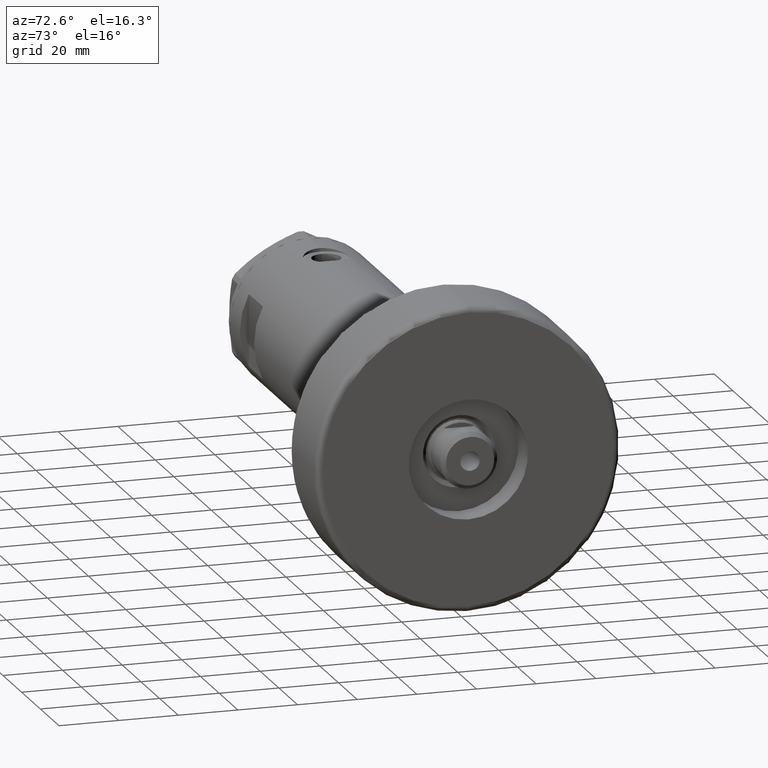
[diagram: clean part render]
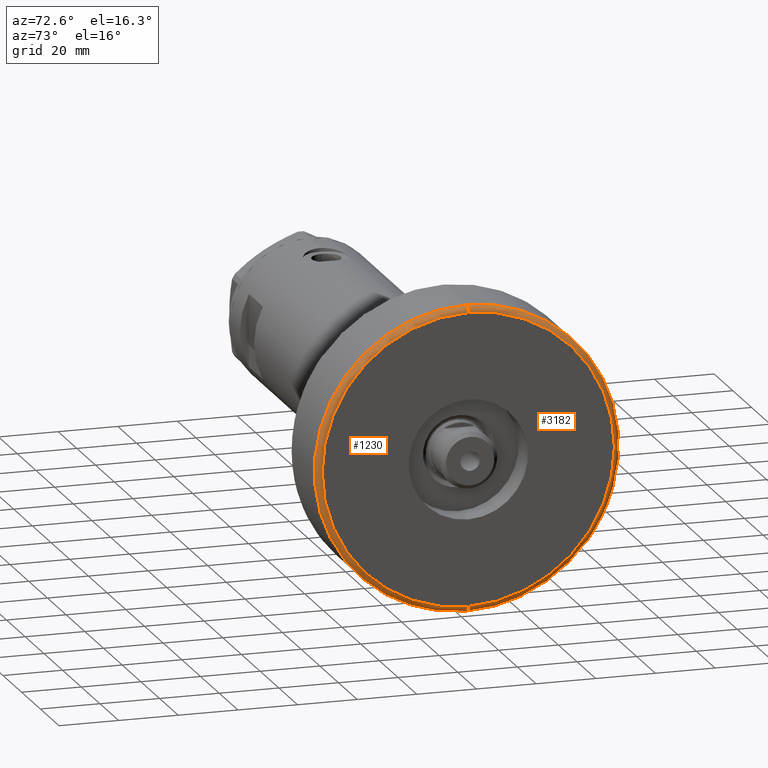
[diagram: same view with one multi-face feature highlighted, each face labeled with its STEP entity id]
A machine part, auxiliary view. The highlighted faces form ONE feature: a constant-radius fillet chain: 2 tangent blend faces with common blend radius 2 mm. The faces share edges in the B-rep.
Their STEP definitions:
[1] entity #1230 (Torus):
#34 = ORIENTED_EDGE ( 'NONE', *, *, #5227, .T. ) ;
#145 = DIRECTION ( 'NONE',  ( 1.000000000000000000, 0.000000000000000000, 0.000000000000000000 ) ) ;
#406 = EDGE_CURVE ( 'NONE', #881, #2254, #3037, .T. ) ;
#713 = CARTESIAN_POINT ( 'NONE',  ( 0.000000000000000000, 0.000000000000000000, 28.00000000000000000 ) ) ;
#762 = CIRCLE ( 'NONE', #4426, 48.99999999999998579 ) ;
#805 = DIRECTION ( 'NONE',  ( 0.000000000000000000, 0.000000000000000000, -1.000000000000000000 ) ) ;
#881 = VERTEX_POINT ( 'NONE', #5192 ) ;
#948 = FACE_OUTER_BOUND ( 'NONE', #2871, .T. ) ;
#1071 = DIRECTION ( 'NONE',  ( 1.000000000000000000, 0.000000000000000000, 0.000000000000000000 ) ) ;
#1218 = DIRECTION ( 'NONE',  ( 0.000000000000000000, 0.000000000000000000, 1.000000000000000000 ) ) ;
#1230 = ADVANCED_FACE ( 'NONE', ( #948 ), #4221, .T. ) ;
#1335 = DIRECTION ( 'NONE',  ( 1.000000000000000000, 0.000000000000000000, 0.000000000000000000 ) ) ;
#1380 = CIRCLE ( 'NONE', #3227, 2.000000000000001776 ) ;
#1611 = DIRECTION ( 'NONE',  ( 1.224646799147353207E-16, 1.000000000000000000, -0.000000000000000000 ) ) ;
#1707 = AXIS2_PLACEMENT_3D ( 'NONE', #2627, #2663, #145 ) ;
#1862 = AXIS2_PLACEMENT_3D ( 'NONE', #3670, #4121, #1335 ) ;
#1993 = CARTESIAN_POINT ( 'NONE',  ( 48.99999999999998579, 0.000000000000000000, 26.00000000000000355 ) ) ;
#2113 = CARTESIAN_POINT ( 'NONE',  ( -48.99999999999998579, 6.123233995736764507E-15, 28.00000000000000000 ) ) ;
#2157 = VERTEX_POINT ( 'NONE', #2603 ) ;
#2254 = VERTEX_POINT ( 'NONE', #4673 ) ;
#2526 = VERTEX_POINT ( 'NONE', #2113 ) ;
#2603 = CARTESIAN_POINT ( 'NONE',  ( 48.99999999999998579, 0.000000000000000000, 28.00000000000000000 ) ) ;
#2627 = CARTESIAN_POINT ( 'NONE',  ( 0.000000000000000000, 0.000000000000000000, 26.00000000000000355 ) ) ;
#2663 = DIRECTION ( 'NONE',  ( 0.000000000000000000, 0.000000000000000000, 1.000000000000000000 ) ) ;
#2695 = ORIENTED_EDGE ( 'NONE', *, *, #406, .F. ) ;
#2871 = EDGE_LOOP ( 'NONE', ( #3199, #2695, #34, #3067 ) ) ;
#3037 = CIRCLE ( 'NONE', #1862, 50.99999999999999289 ) ;
#3067 = ORIENTED_EDGE ( 'NONE', *, *, #3734, .F. ) ;
#3199 = ORIENTED_EDGE ( 'NONE', *, *, #4446, .F. ) ;
#3215 = DIRECTION ( 'NONE',  ( -1.000000000000000000, 1.224646799147353454E-16, 0.000000000000000000 ) ) ;
#3227 = AXIS2_PLACEMENT_3D ( 'NONE', #5230, #1611, #3215 ) ;
#3670 = CARTESIAN_POINT ( 'NONE',  ( 0.000000000000000000, 0.000000000000000000, 26.00000000000000355 ) ) ;
#3734 = EDGE_CURVE ( 'NONE', #2526, #2157, #762, .T. ) ;
#4121 = DIRECTION ( 'NONE',  ( -0.000000000000000000, -0.000000000000000000, -1.000000000000000000 ) ) ;
#4221 = TOROIDAL_SURFACE ( 'NONE', #1707, 48.99999999999998579, 2.000000000000000000 ) ;
#4426 = AXIS2_PLACEMENT_3D ( 'NONE', #713, #1218, #1071 ) ;
#4446 = EDGE_CURVE ( 'NONE', #2254, #2526, #1380, .T. ) ;
#4535 = DIRECTION ( 'NONE',  ( 0.000000000000000000, -1.000000000000000000, 0.000000000000000000 ) ) ;
#4673 = CARTESIAN_POINT ( 'NONE',  ( -50.99999999999999289, 0.000000000000000000, 26.00000000000000355 ) ) ;
#4911 = AXIS2_PLACEMENT_3D ( 'NONE', #1993, #4535, #805 ) ;
#5082 = CIRCLE ( 'NONE', #4911, 2.000000000000001776 ) ;
#5192 = CARTESIAN_POINT ( 'NONE',  ( 50.99999999999999289, 6.245698675651499656E-15, 26.00000000000000355 ) ) ;
#5227 = EDGE_CURVE ( 'NONE', #881, #2157, #5082, .T. ) ;
#5230 = CARTESIAN_POINT ( 'NONE',  ( -48.99999999999998579, 6.000769315822029359E-15, 26.00000000000000355 ) ) ;
[2] entity #3182 (Torus):
#11 = FACE_OUTER_BOUND ( 'NONE', #132, .T. ) ;
#132 = EDGE_LOOP ( 'NONE', ( #1725, #2308, #1661, #5214 ) ) ;
#322 = DIRECTION ( 'NONE',  ( 0.000000000000000000, 0.000000000000000000, 1.000000000000000000 ) ) ;
#343 = EDGE_CURVE ( 'NONE', #2157, #2526, #915, .T. ) ;
#610 = DIRECTION ( 'NONE',  ( -0.000000000000000000, -0.000000000000000000, -1.000000000000000000 ) ) ;
#758 = TOROIDAL_SURFACE ( 'NONE', #5005, 48.99999999999998579, 2.000000000000000000 ) ;
#805 = DIRECTION ( 'NONE',  ( 0.000000000000000000, 0.000000000000000000, -1.000000000000000000 ) ) ;
#817 = CARTESIAN_POINT ( 'NONE',  ( 0.000000000000000000, 0.000000000000000000, 26.00000000000000355 ) ) ;
#881 = VERTEX_POINT ( 'NONE', #5192 ) ;
#915 = CIRCLE ( 'NONE', #3124, 48.99999999999998579 ) ;
#1380 = CIRCLE ( 'NONE', #3227, 2.000000000000001776 ) ;
#1390 = AXIS2_PLACEMENT_3D ( 'NONE', #3433, #610, #5072 ) ;
#1611 = DIRECTION ( 'NONE',  ( 1.224646799147353207E-16, 1.000000000000000000, -0.000000000000000000 ) ) ;
#1661 = ORIENTED_EDGE ( 'NONE', *, *, #343, .F. ) ;
#1725 = ORIENTED_EDGE ( 'NONE', *, *, #5045, .F. ) ;
#1729 = CIRCLE ( 'NONE', #1390, 50.99999999999999289 ) ;
#1993 = CARTESIAN_POINT ( 'NONE',  ( 48.99999999999998579, 0.000000000000000000, 26.00000000000000355 ) ) ;
#2113 = CARTESIAN_POINT ( 'NONE',  ( -48.99999999999998579, 6.123233995736764507E-15, 28.00000000000000000 ) ) ;
#2157 = VERTEX_POINT ( 'NONE', #2603 ) ;
#2254 = VERTEX_POINT ( 'NONE', #4673 ) ;
#2308 = ORIENTED_EDGE ( 'NONE', *, *, #4446, .T. ) ;
#2526 = VERTEX_POINT ( 'NONE', #2113 ) ;
#2603 = CARTESIAN_POINT ( 'NONE',  ( 48.99999999999998579, 0.000000000000000000, 28.00000000000000000 ) ) ;
#3002 = DIRECTION ( 'NONE',  ( 0.000000000000000000, 0.000000000000000000, 1.000000000000000000 ) ) ;
#3124 = AXIS2_PLACEMENT_3D ( 'NONE', #4366, #322, #3549 ) ;
#3182 = ADVANCED_FACE ( 'NONE', ( #11 ), #758, .T. ) ;
#3215 = DIRECTION ( 'NONE',  ( -1.000000000000000000, 1.224646799147353454E-16, 0.000000000000000000 ) ) ;
#3227 = AXIS2_PLACEMENT_3D ( 'NONE', #5230, #1611, #3215 ) ;
#3433 = CARTESIAN_POINT ( 'NONE',  ( 0.000000000000000000, 0.000000000000000000, 26.00000000000000355 ) ) ;
#3549 = DIRECTION ( 'NONE',  ( 1.000000000000000000, 0.000000000000000000, 0.000000000000000000 ) ) ;
#4366 = CARTESIAN_POINT ( 'NONE',  ( 0.000000000000000000, 0.000000000000000000, 28.00000000000000000 ) ) ;
#4446 = EDGE_CURVE ( 'NONE', #2254, #2526, #1380, .T. ) ;
#4535 = DIRECTION ( 'NONE',  ( 0.000000000000000000, -1.000000000000000000, 0.000000000000000000 ) ) ;
#4673 = CARTESIAN_POINT ( 'NONE',  ( -50.99999999999999289, 0.000000000000000000, 26.00000000000000355 ) ) ;
#4911 = AXIS2_PLACEMENT_3D ( 'NONE', #1993, #4535, #805 ) ;
#5005 = AXIS2_PLACEMENT_3D ( 'NONE', #817, #3002, #5087 ) ;
#5045 = EDGE_CURVE ( 'NONE', #2254, #881, #1729, .T. ) ;
#5072 = DIRECTION ( 'NONE',  ( 1.000000000000000000, 0.000000000000000000, 0.000000000000000000 ) ) ;
#5082 = CIRCLE ( 'NONE', #4911, 2.000000000000001776 ) ;
#5087 = DIRECTION ( 'NONE',  ( 1.000000000000000000, 0.000000000000000000, 0.000000000000000000 ) ) ;
#5192 = CARTESIAN_POINT ( 'NONE',  ( 50.99999999999999289, 6.245698675651499656E-15, 26.00000000000000355 ) ) ;
#5214 = ORIENTED_EDGE ( 'NONE', *, *, #5227, .F. ) ;
#5227 = EDGE_CURVE ( 'NONE', #881, #2157, #5082, .T. ) ;
#5230 = CARTESIAN_POINT ( 'NONE',  ( -48.99999999999998579, 6.000769315822029359E-15, 26.00000000000000355 ) ) ;